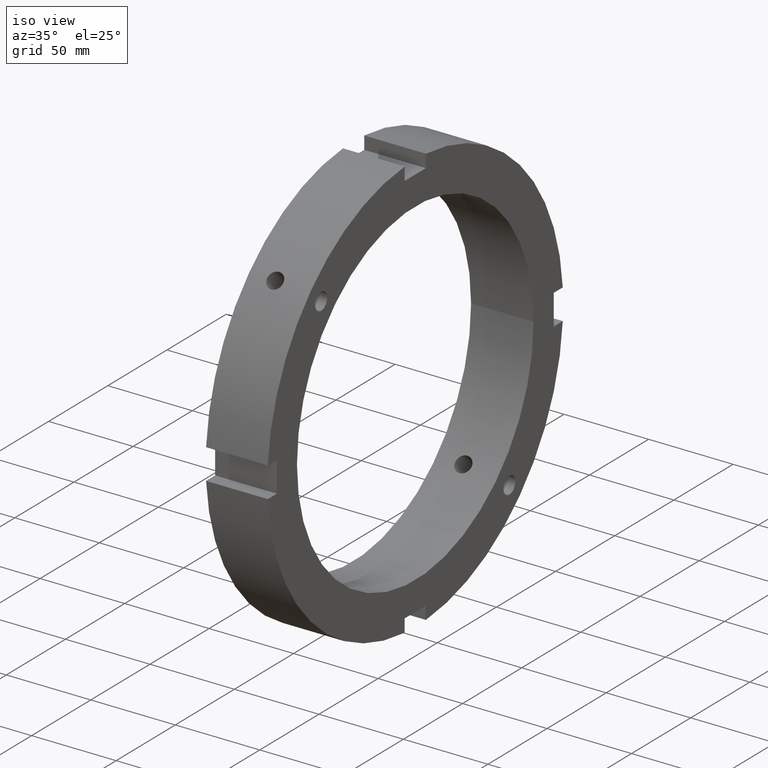
[diagram: clean part render]
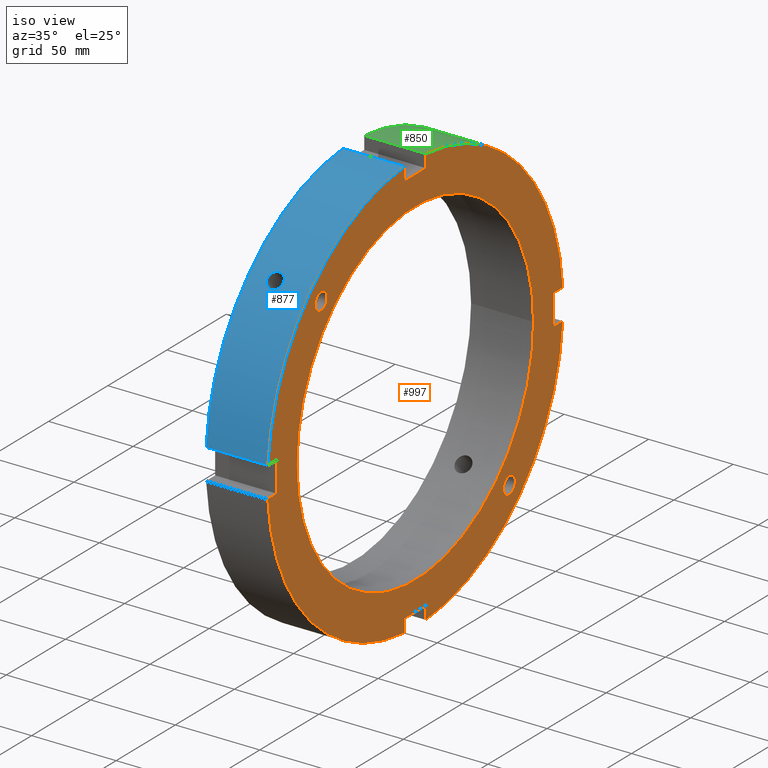
[diagram: same view with three faces highlighted in distinct colors, each labeled with its STEP entity id]
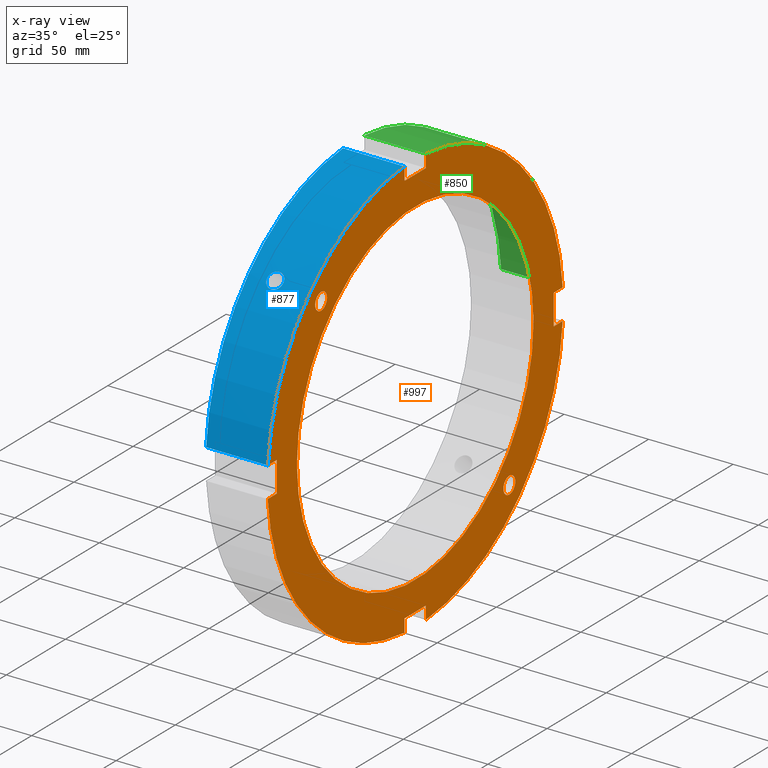
[diagram: x-ray of the same camera — body ghosted, the three highlighted faces saturated]
A machine part, iso view with three faces highlighted in distinct colors.
The next image is the same camera in x-ray (body ghosted, the three faces saturated) — at least one of them is partly hidden behind the body in this view.
Their STEP definitions:

[orange] entity #997 — the highlighted planar face has unit normal (1, 0, 0).
#73=CARTESIAN_POINT('',(36.999999999999972,-84.602512883486526,79.549512883486642));
#74=VERTEX_POINT('',#73);
#75=CARTESIAN_POINT('',(36.999999999999972,-79.549512883486543,79.549512883486642));
#76=DIRECTION('',(-1.0,0.0,0.0));
#77=DIRECTION('',(0.0,-1.0,0.0));
#78=AXIS2_PLACEMENT_3D('',#75,#76,#77);
#79=CIRCLE('',#78,5.053);
#80=EDGE_CURVE('',#74,#74,#79,.T.);
#406=CARTESIAN_POINT('',(36.999999999999972,79.549512883486614,-84.602512883486554));
#407=VERTEX_POINT('',#406);
#408=CARTESIAN_POINT('',(36.999999999999972,79.549512883486614,-79.549512883486557));
#409=DIRECTION('',(-1.0,0.0,0.0));
#410=DIRECTION('',(0.0,0.0,-1.0));
#411=AXIS2_PLACEMENT_3D('',#408,#409,#410);
#412=CIRCLE('',#411,5.053);
#413=EDGE_CURVE('',#407,#407,#412,.T.);
#527=CARTESIAN_POINT('',(36.999999999999972,-9.000000000000014,-117.0));
#528=VERTEX_POINT('',#527);
#535=CARTESIAN_POINT('',(36.999999999999972,-9.000000000000018,-124.67557900406959));
#536=VERTEX_POINT('',#535);
#537=CARTESIAN_POINT('',(36.999999999999972,-9.000000000000025,-124.67557900406959));
#538=DIRECTION('',(0.0,0.0,1.0));
#539=VECTOR('',#538,7.67557900406959);
#540=LINE('',#537,#539);
#541=EDGE_CURVE('',#536,#528,#540,.T.);
#567=CARTESIAN_POINT('',(36.999999999999972,8.99999999999997,-124.67557900406959));
#568=VERTEX_POINT('',#567);
#575=CARTESIAN_POINT('',(36.999999999999972,8.999999999999972,-117.0));
#576=VERTEX_POINT('',#575);
#577=CARTESIAN_POINT('',(36.999999999999972,8.999999999999966,-117.0));
#578=DIRECTION('',(0.0,0.0,-1.0));
#579=VECTOR('',#578,7.67557900406959);
#580=LINE('',#577,#579);
#581=EDGE_CURVE('',#576,#568,#580,.T.);
#604=CARTESIAN_POINT('',(36.999999999999972,-9.000000000000014,-116.99999999999999));
#605=DIRECTION('',(0.0,1.0,0.0));
#606=VECTOR('',#605,17.999999999999979);
#607=LINE('',#604,#606);
#608=EDGE_CURVE('',#528,#576,#607,.T.);
#629=CARTESIAN_POINT('',(36.999999999999972,-117.0,9.000000000000007));
#630=VERTEX_POINT('',#629);
#637=CARTESIAN_POINT('',(36.999999999999972,-124.67557900406959,9.000000000000009));
#638=VERTEX_POINT('',#637);
#639=CARTESIAN_POINT('',(36.999999999999972,-124.67557900406959,9.000000000000007));
#640=DIRECTION('',(0.0,1.0,0.0));
#641=VECTOR('',#640,7.67557900406959);
#642=LINE('',#639,#641);
#643=EDGE_CURVE('',#638,#630,#642,.T.);
#669=CARTESIAN_POINT('',(36.999999999999972,-124.67557900406959,-8.999999999999979));
#670=VERTEX_POINT('',#669);
#677=CARTESIAN_POINT('',(36.999999999999972,-117.0,-8.999999999999981));
#678=VERTEX_POINT('',#677);
#679=CARTESIAN_POINT('',(36.999999999999972,-117.0,-8.999999999999979));
#680=DIRECTION('',(0.0,-1.0,0.0));
#681=VECTOR('',#680,7.67557900406959);
#682=LINE('',#679,#681);
#683=EDGE_CURVE('',#678,#670,#682,.T.);
#706=CARTESIAN_POINT('',(36.999999999999972,-117.0,9.000000000000007));
#707=DIRECTION('',(0.0,0.0,-1.0));
#708=VECTOR('',#707,17.999999999999986);
#709=LINE('',#706,#708);
#710=EDGE_CURVE('',#630,#678,#709,.T.);
#731=CARTESIAN_POINT('',(36.999999999999972,9.0,117.0));
#732=VERTEX_POINT('',#731);
#739=CARTESIAN_POINT('',(36.999999999999972,9.000000000000002,124.67557900406959));
#740=VERTEX_POINT('',#739);
#741=CARTESIAN_POINT('',(36.999999999999972,9.000000000000007,124.67557900406959));
#742=DIRECTION('',(0.0,0.0,-1.0));
#743=VECTOR('',#742,7.67557900406959);
#744=LINE('',#741,#743);
#745=EDGE_CURVE('',#740,#732,#744,.T.);
#771=CARTESIAN_POINT('',(36.999999999999972,-8.999999999999986,124.67557900406959));
#772=VERTEX_POINT('',#771);
#779=CARTESIAN_POINT('',(36.999999999999972,-8.999999999999988,117.0));
#780=VERTEX_POINT('',#779);
#781=CARTESIAN_POINT('',(36.999999999999972,-8.999999999999982,117.0));
#782=DIRECTION('',(0.0,0.0,1.0));
#783=VECTOR('',#782,7.67557900406959);
#784=LINE('',#781,#783);
#785=EDGE_CURVE('',#780,#772,#784,.T.);
#808=CARTESIAN_POINT('',(36.999999999999972,9.000000000000007,117.0));
#809=DIRECTION('',(0.0,-1.0,0.0));
#810=VECTOR('',#809,17.999999999999993);
#811=LINE('',#808,#810);
#812=EDGE_CURVE('',#732,#780,#811,.T.);
#824=CARTESIAN_POINT('',(36.999999999999972,124.67557900406959,8.999999999999993));
#825=VERTEX_POINT('',#824);
#826=CARTESIAN_POINT('',(36.999999999999972,0.0,0.0));
#827=DIRECTION('',(1.0,0.0,0.0));
#828=DIRECTION('',(0.0,1.0,0.0));
#829=AXIS2_PLACEMENT_3D('',#826,#827,#828);
#830=CIRCLE('',#829,125.0);
#831=EDGE_CURVE('',#825,#740,#830,.T.);
#857=CARTESIAN_POINT('',(36.999999999999972,0.0,0.0));
#858=DIRECTION('',(1.0,0.0,0.0));
#859=DIRECTION('',(0.0,1.0,0.0));
#860=AXIS2_PLACEMENT_3D('',#857,#858,#859);
#861=CIRCLE('',#860,125.0);
#862=EDGE_CURVE('',#772,#638,#861,.T.);
#893=CARTESIAN_POINT('',(36.999999999999972,124.67557900406959,-8.999999999999993));
#894=VERTEX_POINT('',#893);
#901=CARTESIAN_POINT('',(36.999999999999972,0.0,0.0));
#902=DIRECTION('',(1.0,0.0,0.0));
#903=DIRECTION('',(0.0,1.0,0.0));
#904=AXIS2_PLACEMENT_3D('',#901,#902,#903);
#905=CIRCLE('',#904,125.0);
#906=EDGE_CURVE('',#568,#894,#905,.T.);
#920=CARTESIAN_POINT('',(36.999999999999972,0.0,0.0));
#921=DIRECTION('',(1.0,0.0,0.0));
#922=DIRECTION('',(0.0,1.0,0.0));
#923=AXIS2_PLACEMENT_3D('',#920,#921,#922);
#924=CIRCLE('',#923,125.0);
#925=EDGE_CURVE('',#670,#536,#924,.T.);
#938=CARTESIAN_POINT('',(36.999999999999972,112.5,0.0));
#939=DIRECTION('',(1.0,0.0,0.0));
#940=DIRECTION('',(0.0,0.0,-1.0));
#941=AXIS2_PLACEMENT_3D('',#938,#939,#940);
#942=PLANE('',#941);
#943=ORIENTED_EDGE('',*,*,#541,.T.);
#944=ORIENTED_EDGE('',*,*,#608,.T.);
#945=ORIENTED_EDGE('',*,*,#581,.T.);
#946=ORIENTED_EDGE('',*,*,#906,.T.);
#947=CARTESIAN_POINT('',(36.999999999999972,117.0,-8.999999999999993));
#948=VERTEX_POINT('',#947);
#949=CARTESIAN_POINT('',(36.999999999999972,124.67557900406959,-8.999999999999993));
#950=DIRECTION('',(0.0,-1.0,0.0));
#951=VECTOR('',#950,7.67557900406959);
#952=LINE('',#949,#951);
#953=EDGE_CURVE('',#894,#948,#952,.T.);
#954=ORIENTED_EDGE('',*,*,#953,.T.);
#955=CARTESIAN_POINT('',(36.999999999999972,117.0,8.999999999999993));
#956=VERTEX_POINT('',#955);
#957=CARTESIAN_POINT('',(36.999999999999972,117.0,-8.999999999999993));
#958=DIRECTION('',(0.0,0.0,1.0));
#959=VECTOR('',#958,17.999999999999986);
#960=LINE('',#957,#959);
#961=EDGE_CURVE('',#948,#956,#960,.T.);
#962=ORIENTED_EDGE('',*,*,#961,.T.);
#963=CARTESIAN_POINT('',(36.999999999999972,117.0,8.999999999999993));
#964=DIRECTION('',(0.0,1.0,0.0));
#965=VECTOR('',#964,7.67557900406959);
#966=LINE('',#963,#965);
#967=EDGE_CURVE('',#956,#825,#966,.T.);
#968=ORIENTED_EDGE('',*,*,#967,.T.);
#969=ORIENTED_EDGE('',*,*,#831,.T.);
#970=ORIENTED_EDGE('',*,*,#745,.T.);
#971=ORIENTED_EDGE('',*,*,#812,.T.);
#972=ORIENTED_EDGE('',*,*,#785,.T.);
#973=ORIENTED_EDGE('',*,*,#862,.T.);
#974=ORIENTED_EDGE('',*,*,#643,.T.);
#975=ORIENTED_EDGE('',*,*,#710,.T.);
#976=ORIENTED_EDGE('',*,*,#683,.T.);
#977=ORIENTED_EDGE('',*,*,#925,.T.);
#978=EDGE_LOOP('',(#943,#944,#945,#946,#954,#962,#968,#969,#970,#971,#972,#973,#974,#975,#976,#977));
#979=FACE_OUTER_BOUND('',#978,.T.);
#980=ORIENTED_EDGE('',*,*,#80,.T.);
#981=EDGE_LOOP('',(#980));
#982=FACE_BOUND('',#981,.T.);
#983=ORIENTED_EDGE('',*,*,#413,.T.);
#984=EDGE_LOOP('',(#983));
#985=FACE_BOUND('',#984,.T.);
#986=CARTESIAN_POINT('',(36.999999999999979,100.0,0.0));
#987=VERTEX_POINT('',#986);
#988=CARTESIAN_POINT('',(36.999999999999979,0.0,0.0));
#989=DIRECTION('',(1.0,0.0,0.0));
#990=DIRECTION('',(0.0,1.0,0.0));
#991=AXIS2_PLACEMENT_3D('',#988,#989,#990);
#992=CIRCLE('',#991,100.0);
#993=EDGE_CURVE('',#987,#987,#992,.T.);
#994=ORIENTED_EDGE('',*,*,#993,.F.);
#995=EDGE_LOOP('',(#994));
#996=FACE_BOUND('',#995,.T.);
#997=ADVANCED_FACE('',(#979,#982,#985,#996),#942,.T.);

[blue] entity #877 — the highlighted cylindrical surface (partial cylindrical patch) has radius 125 mm, axis along (1, 0, 0).
#201=CARTESIAN_POINT('',(15.999999999999979,-91.717269196183082,84.929044096792268));
#202=VERTEX_POINT('',#201);
#203=CARTESIAN_POINT('',(15.999999999999979,-91.717269196183054,84.929044096792296));
#204=CARTESIAN_POINT('',(15.397237708804285,-91.717269196183054,84.929044096792296));
#205=CARTESIAN_POINT('',(14.754338908633153,-91.635483517042104,85.01763482270195));
#206=CARTESIAN_POINT('',(13.571735640506439,-91.301385551895322,85.376326147910063));
#207=CARTESIAN_POINT('',(13.03202615726121,-91.048898848249877,85.646247709419697));
#208=CARTESIAN_POINT('',(12.179748774635051,-90.462617492950983,86.265268587534536));
#209=CARTESIAN_POINT('',(11.810350325449306,-90.0896998710774,86.655615457474198));
#210=CARTESIAN_POINT('',(11.320474297826044,-89.265763316667659,87.504132546217534));
#211=CARTESIAN_POINT('',(11.199999999999985,-88.814564920573517,87.962130376063342));
#212=CARTESIAN_POINT('',(11.199999999999973,-87.962130376063328,88.814564920573531));
#213=CARTESIAN_POINT('',(11.320474297826021,-87.504132546217505,89.265763316667673));
#214=CARTESIAN_POINT('',(11.810350325449273,-86.65561545747417,90.089699871077443));
#215=CARTESIAN_POINT('',(12.179748774635048,-86.265268587534507,90.462617492950997));
#216=CARTESIAN_POINT('',(13.032026157261193,-85.646247709419683,91.04889884824992));
#217=CARTESIAN_POINT('',(13.571735640506411,-85.376326147910007,91.301385551895379));
#218=CARTESIAN_POINT('',(14.754338908633125,-85.017634822701893,91.635483517042161));
#219=CARTESIAN_POINT('',(15.39723770880428,-84.929044096792211,91.717269196183111));
#220=CARTESIAN_POINT('',(16.602762291195678,-84.929044096792211,91.717269196183111));
#221=CARTESIAN_POINT('',(17.245661091366831,-85.017634822701893,91.635483517042161));
#222=CARTESIAN_POINT('',(18.428264359493543,-85.376326147910007,91.301385551895379));
#223=CARTESIAN_POINT('',(18.967973842738761,-85.646247709419683,91.04889884824992));
#224=CARTESIAN_POINT('',(19.820251225364906,-86.265268587534507,90.462617492950997));
#225=CARTESIAN_POINT('',(20.18964967455069,-86.65561545747417,90.089699871077443));
#226=CARTESIAN_POINT('',(20.679525702173937,-87.504132546217505,89.265763316667673));
#227=CARTESIAN_POINT('',(20.799999999999983,-87.962130376063328,88.814564920573531));
#228=CARTESIAN_POINT('',(20.799999999999976,-88.814564920573517,87.962130376063342));
#229=CARTESIAN_POINT('',(20.679525702173912,-89.265763316667673,87.504132546217534));
#230=CARTESIAN_POINT('',(20.189649674550651,-90.0896998710774,86.655615457474212));
#231=CARTESIAN_POINT('',(19.82025122536491,-90.462617492950983,86.265268587534536));
#232=CARTESIAN_POINT('',(18.967973842738747,-91.048898848249877,85.646247709419697));
#233=CARTESIAN_POINT('',(18.428264359493518,-91.301385551895322,85.376326147910063));
#234=CARTESIAN_POINT('',(17.245661091366806,-91.635483517042104,85.01763482270195));
#235=CARTESIAN_POINT('',(16.60276229119567,-91.717269196183054,84.929044096792296));
#236=CARTESIAN_POINT('',(15.999999999999977,-91.717269196183054,84.929044096792296));
#237=B_SPLINE_CURVE_WITH_KNOTS('',3,(#203,#204,#205,#206,#207,#208,#209,#210,#211,#212,#213,#214,#215,#216,#217,#218,#219,#220,#221,#222,#223,#224,#225,#226,#227,#228,#229,#230,#231,#232,#233,#234,#235,#236),.UNSPECIFIED.,.T.,.U.,(4,2,2,2,2,2,2,2,2,2,2,2,2,2,2,2,4),(0.0,0.180828687358708,0.361657374717416,0.542486048799665,0.723314722881914,0.904143396964161,1.084972071046409,1.265800758405119,1.446629445763828,1.627458133122538,1.808286820481247,1.989115494563495,2.169944168645742,2.350772842727992,2.53160151681024,2.712430204168948,2.893258891527657),.UNSPECIFIED.);
#238=EDGE_CURVE('',#202,#202,#237,.T.);
#621=CARTESIAN_POINT('',(0.499999999999963,-124.67557900406959,9.000000000000009));
#622=VERTEX_POINT('',#621);
#637=CARTESIAN_POINT('',(36.999999999999972,-124.67557900406959,9.000000000000009));
#638=VERTEX_POINT('',#637);
#645=CARTESIAN_POINT('',(0.499999999999964,-124.67557900406959,9.000000000000007));
#646=DIRECTION('',(1.0,0.0,0.0));
#647=VECTOR('',#646,36.500000000000007);
#648=LINE('',#645,#647);
#649=EDGE_CURVE('',#622,#638,#648,.T.);
#761=CARTESIAN_POINT('',(0.499999999999963,-8.999999999999986,124.67557900406959));
#762=VERTEX_POINT('',#761);
#771=CARTESIAN_POINT('',(36.999999999999972,-8.999999999999986,124.67557900406959));
#772=VERTEX_POINT('',#771);
#773=CARTESIAN_POINT('',(36.999999999999972,-8.999999999999986,124.67557900406959));
#774=DIRECTION('',(-1.0,0.0,0.0));
#775=VECTOR('',#774,36.500000000000007);
#776=LINE('',#773,#775);
#777=EDGE_CURVE('',#772,#762,#776,.T.);
#851=CARTESIAN_POINT('',(18.749999999999968,0.0,0.0));
#852=DIRECTION('',(1.0,0.0,0.0));
#853=DIRECTION('',(0.0,1.0,0.0));
#854=AXIS2_PLACEMENT_3D('',#851,#852,#853);
#855=CYLINDRICAL_SURFACE('',#854,125.0);
#856=ORIENTED_EDGE('',*,*,#649,.T.);
#857=CARTESIAN_POINT('',(36.999999999999972,0.0,0.0));
#858=DIRECTION('',(1.0,0.0,0.0));
#859=DIRECTION('',(0.0,1.0,0.0));
#860=AXIS2_PLACEMENT_3D('',#857,#858,#859);
#861=CIRCLE('',#860,125.0);
#862=EDGE_CURVE('',#772,#638,#861,.T.);
#863=ORIENTED_EDGE('',*,*,#862,.F.);
#864=ORIENTED_EDGE('',*,*,#777,.T.);
#865=CARTESIAN_POINT('',(0.499999999999963,0.0,0.0));
#866=DIRECTION('',(1.0,0.0,0.0));
#867=DIRECTION('',(0.0,1.0,0.0));
#868=AXIS2_PLACEMENT_3D('',#865,#866,#867);
#869=CIRCLE('',#868,125.0);
#870=EDGE_CURVE('',#762,#622,#869,.T.);
#871=ORIENTED_EDGE('',*,*,#870,.T.);
#872=EDGE_LOOP('',(#856,#863,#864,#871));
#873=FACE_OUTER_BOUND('',#872,.T.);
#874=ORIENTED_EDGE('',*,*,#238,.T.);
#875=EDGE_LOOP('',(#874));
#876=FACE_BOUND('',#875,.T.);
#877=ADVANCED_FACE('',(#873,#876),#855,.T.);

[green] entity #850 — the highlighted cylindrical surface (partial cylindrical patch) has radius 125 mm, axis along (1, 0, 0).
#723=CARTESIAN_POINT('',(0.499999999999963,9.000000000000002,124.67557900406959));
#724=VERTEX_POINT('',#723);
#739=CARTESIAN_POINT('',(36.999999999999972,9.000000000000002,124.67557900406959));
#740=VERTEX_POINT('',#739);
#747=CARTESIAN_POINT('',(0.499999999999964,9.000000000000002,124.67557900406959));
#748=DIRECTION('',(1.0,0.0,0.0));
#749=VECTOR('',#748,36.500000000000007);
#750=LINE('',#747,#749);
#751=EDGE_CURVE('',#724,#740,#750,.T.);
#818=CARTESIAN_POINT('',(18.749999999999968,0.0,0.0));
#819=DIRECTION('',(1.0,0.0,0.0));
#820=DIRECTION('',(0.0,1.0,0.0));
#821=AXIS2_PLACEMENT_3D('',#818,#819,#820);
#822=CYLINDRICAL_SURFACE('',#821,125.0);
#823=ORIENTED_EDGE('',*,*,#751,.T.);
#824=CARTESIAN_POINT('',(36.999999999999972,124.67557900406959,8.999999999999993));
#825=VERTEX_POINT('',#824);
#826=CARTESIAN_POINT('',(36.999999999999972,0.0,0.0));
#827=DIRECTION('',(1.0,0.0,0.0));
#828=DIRECTION('',(0.0,1.0,0.0));
#829=AXIS2_PLACEMENT_3D('',#826,#827,#828);
#830=CIRCLE('',#829,125.0);
#831=EDGE_CURVE('',#825,#740,#830,.T.);
#832=ORIENTED_EDGE('',*,*,#831,.F.);
#833=CARTESIAN_POINT('',(0.499999999999963,124.67557900406959,8.999999999999993));
#834=VERTEX_POINT('',#833);
#835=CARTESIAN_POINT('',(36.999999999999972,124.67557900406959,8.999999999999993));
#836=DIRECTION('',(-1.0,0.0,0.0));
#837=VECTOR('',#836,36.500000000000007);
#838=LINE('',#835,#837);
#839=EDGE_CURVE('',#825,#834,#838,.T.);
#840=ORIENTED_EDGE('',*,*,#839,.T.);
#841=CARTESIAN_POINT('',(0.499999999999963,0.0,0.0));
#842=DIRECTION('',(1.0,0.0,0.0));
#843=DIRECTION('',(0.0,1.0,0.0));
#844=AXIS2_PLACEMENT_3D('',#841,#842,#843);
#845=CIRCLE('',#844,125.0);
#846=EDGE_CURVE('',#834,#724,#845,.T.);
#847=ORIENTED_EDGE('',*,*,#846,.T.);
#848=EDGE_LOOP('',(#823,#832,#840,#847));
#849=FACE_OUTER_BOUND('',#848,.T.);
#850=ADVANCED_FACE('',(#849),#822,.T.);